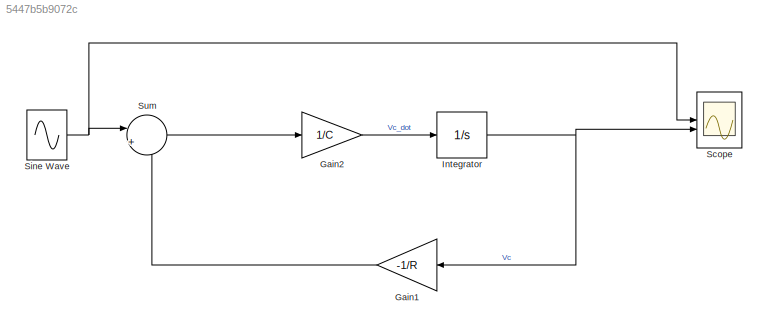
MODEL slx_5447b5b9072c
KIND model
CONFIG AbsTol = auto
CONFIG EnableMultiTasking = off
CONFIG FixedStep = auto
CONFIG MaxStep = 1e-2
CONFIG MinStep = auto
CONFIG RelTol = 1e-3
CONFIG SampleTimeConstraint = Unconstrained
CONFIG SolverName = VariableStepAuto
CONFIG StartTime = 0.0
CONFIG StopTime = 10.0
BLOCK [Gain] Gain1
  Gain = -1/R
BLOCK [Gain] Gain2
  Gain = 1/C
BLOCK [Integrator] Integrator
  InitialCondition = 2
BLOCK [Scope] Scope
  Floating = off
  NumInputPorts = 2
  ScopeSpecificationString = Simulink.scopes.TimeScopeBlockCfg('CurrentConfiguration', extmgr.ConfigurationSet(extmgr.Configuration('Core','General UI',true),extmgr.Configuration('Core','Source UI',true),extmgr.Configuration('Sources','WiredSimulink',true),extmgr.Configuration('Visuals','Time Domain',true,'SerializedDisplays',{struct('MinYLimReal','-6.24708','MaxYLimReal','6.24708','YLabelReal','','MinYLimMag','0.00000','MaxY...<+2047ch>
BLOCK [Sin] Sine Wave
  Amplitude = 5
  Frequency = 2*pi
  SampleTime = 0
BLOCK [Sum] Sum
  Inputs = |++
LINE Gain1:1 -> Sum:2
LINE Gain2:1 -> Integrator:1
NET Integrator:1 -> Gain1:1, Scope:2
NET Sine Wave:1 -> Scope:1, Sum:1
LINE Sum:1 -> Gain2:1
note: NET lines group one-source signal fan-out (src -> all destinations, sorted); 1:1 wires keep LINE
